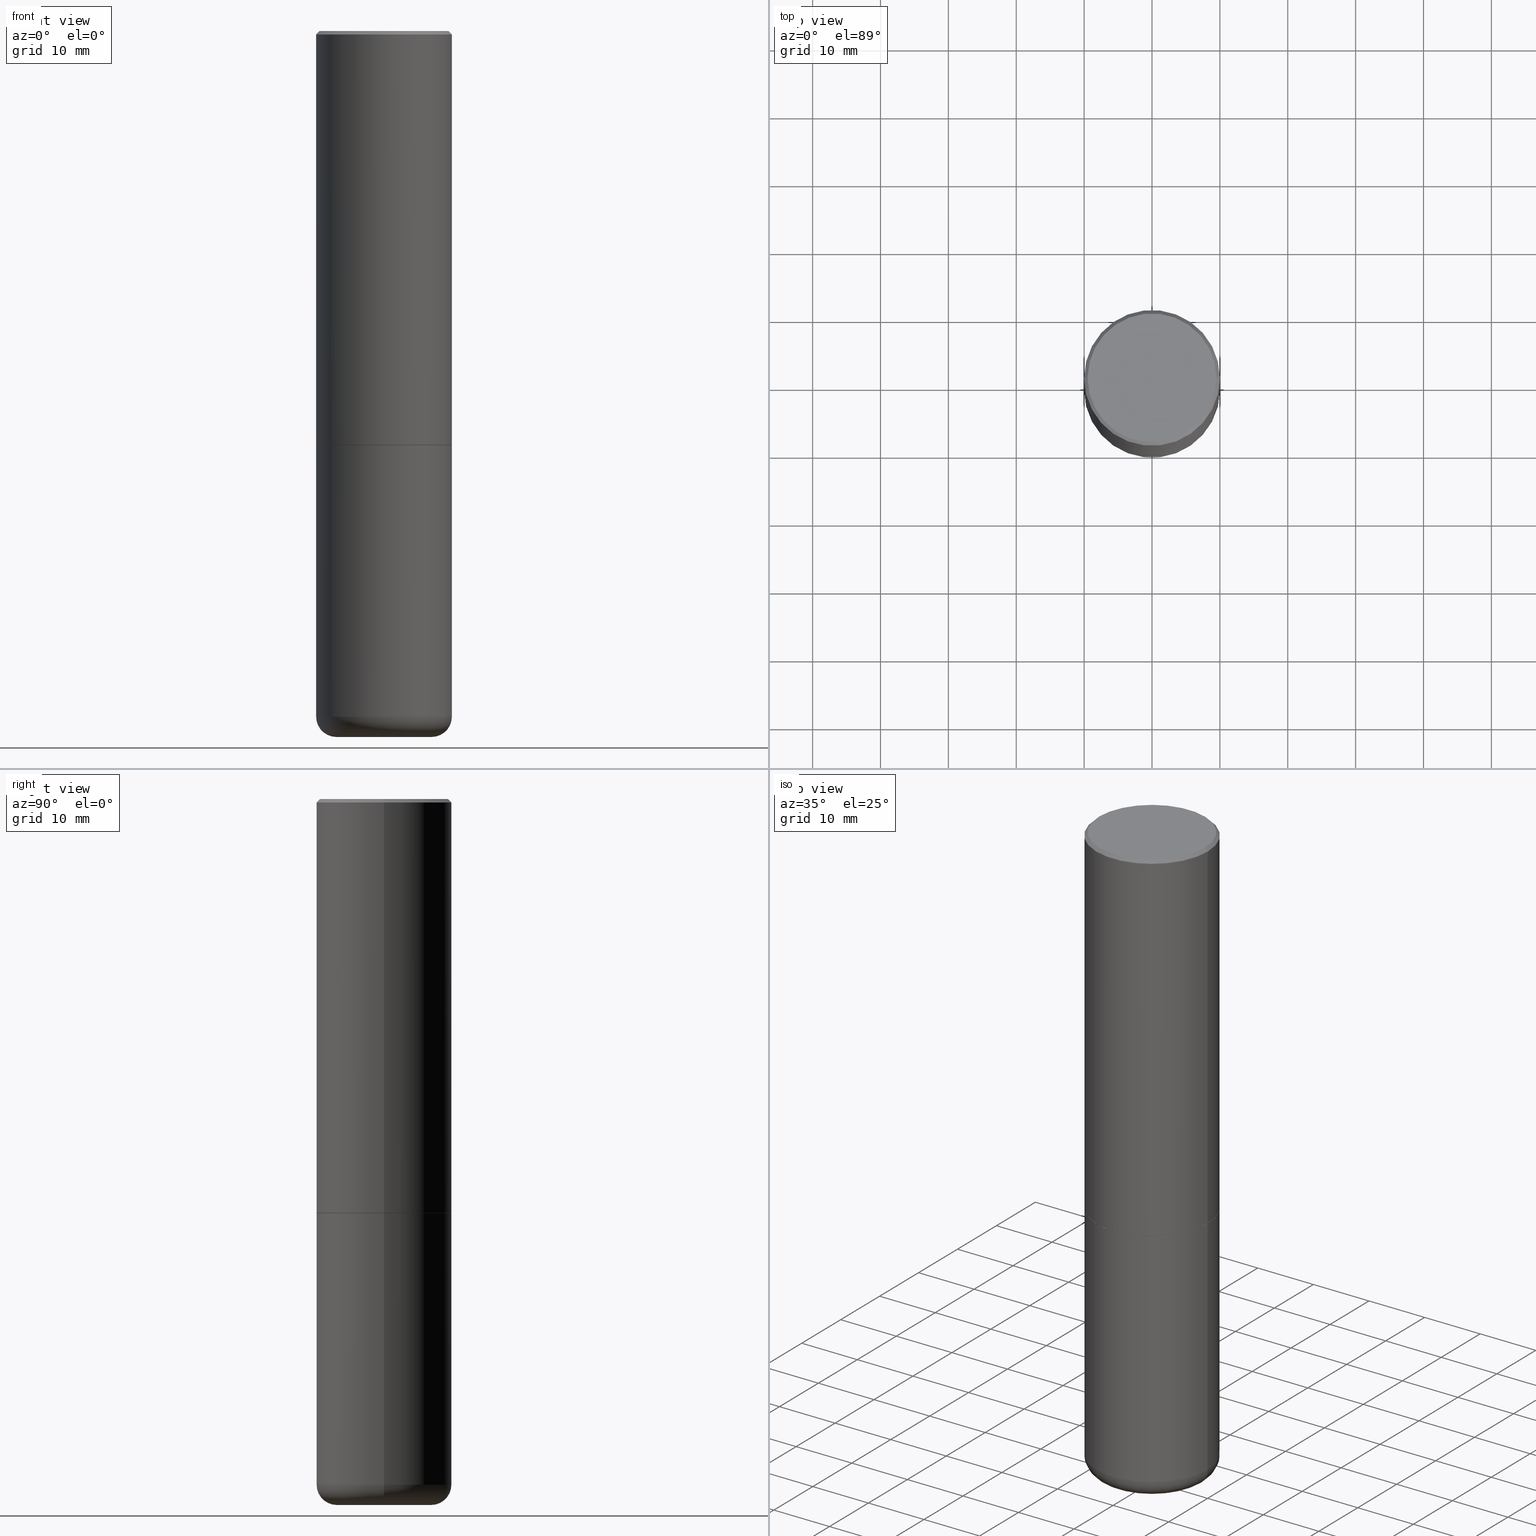
[diagram: canonical four-view strip — front | top / right | iso, engineering-drawing reading convention]
A machine part, canonical four-view strip (front | top / right | iso — engineering-drawing reading convention). The complete STEP part file that produces these views, byte-faithful:
ISO-10303-21;
HEADER;
FILE_DESCRIPTION (( 'STEP AP203' ),
    '1' );
FILE_NAME ('48046.STEP',
    '2024-03-06T19:48:46',
    ( '' ),
    ( '' ),
    'SwSTEP 2.0',
    'SolidWorks 2023',
    '' );
FILE_SCHEMA (( 'CONFIG_CONTROL_DESIGN' ));
ENDSEC;

DATA;
#1 = DIRECTION ( 'NONE',  ( 1.000000000000000000, -6.982962677686268288E-15, 4.883557194083112901E-29 ) ) ;
#2 = ADVANCED_FACE ( 'NONE', ( #343 ), #416, .T. ) ;
#3 = DIRECTION ( 'NONE',  ( 1.000000000000000000, -6.982962677686265922E-15, 4.876176775795935793E-29 ) ) ;
#4 = AXIS2_PLACEMENT_3D ( 'NONE', #300, #49, #373 ) ;
#5 = DATE_AND_TIME ( #67, #56 ) ;
#6 = VECTOR ( 'NONE', #406, 39.37007874015748143 ) ;
#7 = EDGE_CURVE ( 'NONE', #64, #188, #109, .T. ) ;
#8 = DIRECTION ( 'NONE',  ( 2.438088387897960049E-29, -3.491481338843145188E-15, -1.000000000000000000 ) ) ;
#9 = ORIENTED_EDGE ( 'NONE', *, *, #159, .F. ) ;
#10 = DIRECTION ( 'NONE',  ( 1.000000000000000000, -6.982962677686265922E-15, 0.000000000000000000 ) ) ;
#11 = PRODUCT_DEFINITION ( 'UNKNOWN', '', #321, #33 ) ;
#12 = AXIS2_PLACEMENT_3D ( 'NONE', #171, #8, #137 ) ;
#13 = CARTESIAN_POINT ( 'NONE',  ( -0.3937000000000000499, 2.679362779428219918E-15, -0.02000000000000008715 ) ) ;
#14 = ADVANCED_FACE ( 'NONE', ( #362 ), #35, .T. ) ;
#15 = ADVANCED_BREP_SHAPE_REPRESENTATION ( '48046', ( #172, #183, #322 ), #118 ) ;
#16 = FACE_OUTER_BOUND ( 'NONE', #194, .T. ) ;
#17 = PLANE ( 'NONE',  #289 ) ;
#18 = CARTESIAN_POINT ( 'NONE',  ( 5.873037884934224349E-29, -8.385141583365698841E-15, -2.401600000000000179 ) ) ;
#19 = LENGTH_MEASURE_WITH_UNIT ( LENGTH_MEASURE( 0.02539999999999999897 ), #383 );
#20 = DIRECTION ( 'NONE',  ( 1.000000000000000000, -6.982962677686267499E-15, 0.000000000000000000 ) ) ;
#21 = ORIENTED_EDGE ( 'NONE', *, *, #296, .F. ) ;
#22 = DIRECTION ( 'NONE',  ( 1.000000000000000000, -6.982962677686265922E-15, 0.000000000000000000 ) ) ;
#23 = EDGE_CURVE ( 'NONE', #192, #380, #417, .T. ) ;
#24 = EDGE_LOOP ( 'NONE', ( #402, #286, #411, #353 ) ) ;
#25 = AXIS2_PLACEMENT_3D ( 'NONE', #125, #410, #20 ) ;
#26 = PERSON_AND_ORGANIZATION ( #27, #141 ) ;
#27 = PERSON ( 'UNSPECIFIED', 'UNSPECIFIED', 'UNSPECIFIED', ('UNSPECIFIED'), ('UNSPECIFIED'), ('UNSPECIFIED') ) ;
#28 = ORIENTED_EDGE ( 'NONE', *, *, #130, .T. ) ;
#29 = ORIENTED_EDGE ( 'NONE', *, *, #131, .F. ) ;
#30 = APPROVAL_ROLE ( '' ) ;
#31 = ORIENTED_EDGE ( 'NONE', *, *, #191, .T. ) ;
#32 = AXIS2_PLACEMENT_3D ( 'NONE', #227, #63, #198 ) ;
#33 = DESIGN_CONTEXT ( 'detailed design', #278, 'design' ) ;
#34 = DIRECTION ( 'NONE',  ( 1.000000000000000000, -6.982962677686266711E-15, 4.876176775795935793E-29 ) ) ;
#35 = CYLINDRICAL_SURFACE ( 'NONE', #32, 0.3937000000000000499 ) ;
#36 = EDGE_CURVE ( 'NONE', #274, #77, #256, .T. ) ;
#37 = CC_DESIGN_SECURITY_CLASSIFICATION ( #140, ( #321 ) ) ;
#38 = DIRECTION ( 'NONE',  ( -2.445468806185136597E-29, 3.491481338843145583E-15, 1.000000000000000000 ) ) ;
#39 = CARTESIAN_POINT ( 'NONE',  ( 9.724162160914577144E-29, -1.388352639577588421E-14, -3.976400000000000379 ) ) ;
#40 = DIRECTION ( 'NONE',  ( -2.445468806185136597E-29, 3.491481338843145583E-15, 1.000000000000000000 ) ) ;
#41 = AXIS2_PLACEMENT_3D ( 'NONE', #356, #261, #34 ) ;
#42 = CONICAL_SURFACE ( 'NONE', #269, 0.3937000000000000499, 0.7853981633974461696 ) ;
#43 = CARTESIAN_POINT ( 'NONE',  ( -0.3736999999999997546, 2.644447966039789058E-15, 2.646477743862071275E-16 ) ) ;
#44 = CARTESIAN_POINT ( 'NONE',  ( -0.2756000000000000116, -1.192527061602104919E-14, -3.976400000000000379 ) ) ;
#45 = ADVANCED_FACE ( 'NONE', ( #208 ), #206, .T. ) ;
#46 = APPROVAL ( #320, 'UNSPECIFIED' ) ;
#47 = ORIENTED_EDGE ( 'NONE', *, *, #107, .T. ) ;
#48 = DIRECTION ( 'NONE',  ( 1.000000000000000000, -6.982962677686265133E-15, 0.000000000000000000 ) ) ;
#49 = DIRECTION ( 'NONE',  ( -2.445468806185136597E-29, 3.491481338843145583E-15, 1.000000000000000000 ) ) ;
#50 = AXIS2_PLACEMENT_3D ( 'NONE', #388, #38, #297 ) ;
#51 = ORIENTED_EDGE ( 'NONE', *, *, #262, .T. ) ;
#52 = CARTESIAN_POINT ( 'NONE',  ( -0.3937000000000000499, 2.679362779428219918E-15, -0.02000000000000008715 ) ) ;
#53 = EDGE_LOOP ( 'NONE', ( #31, #218 ) ) ;
#54 = DIRECTION ( 'NONE',  ( -1.000000000000000000, 6.982962677686265922E-15, 0.000000000000000000 ) ) ;
#55 = ORIENTED_EDGE ( 'NONE', *, *, #302, .F. ) ;
#56 = LOCAL_TIME ( 14, 48, 46.00000000000000000, #232 ) ;
#57 = ORIENTED_EDGE ( 'NONE', *, *, #132, .T. ) ;
#58 = DIRECTION ( 'NONE',  ( 2.445468806185136597E-29, -3.491481338843145583E-15, -1.000000000000000000 ) ) ;
#59 = ORIENTED_EDGE ( 'NONE', *, *, #302, .T. ) ;
#60 = CARTESIAN_POINT ( 'NONE',  ( -0.3937000000000000499, -8.336927238883277526E-15, -2.401600000000000179 ) ) ;
#61 = VECTOR ( 'NONE', #239, 39.37007874015748143 ) ;
#62 = LOCAL_TIME ( 14, 48, 46.00000000000000000, #325 ) ;
#63 = DIRECTION ( 'NONE',  ( -2.445468806185136597E-29, 3.491481338843145583E-15, 1.000000000000000000 ) ) ;
#64 = VERTEX_POINT ( 'NONE', #292 ) ;
#65 = APPROVAL_DATE_TIME ( #265, #358 ) ;
#66 = CARTESIAN_POINT ( 'NONE',  ( 1.001297202692504102E-28, -1.429587034189325834E-14, -4.094500000000000028 ) ) ;
#67 = CALENDAR_DATE ( 2024, 6, 3 ) ;
#68 = DIRECTION ( 'NONE',  ( -2.445468806185136877E-29, 3.491481338843145188E-15, 1.000000000000000000 ) ) ;
#69 = PERSON_AND_ORGANIZATION ( #27, #141 ) ;
#70 = CARTESIAN_POINT ( 'NONE',  ( 0.3937000000000000499, -1.113433398957078206E-14, -2.401600000000000179 ) ) ;
#71 = DIRECTION ( 'NONE',  ( 1.000000000000000000, -6.982962677686268288E-15, 0.000000000000000000 ) ) ;
#72 = DIRECTION ( 'NONE',  ( -2.438088387897960049E-29, 3.491481338843145188E-15, 1.000000000000000000 ) ) ;
#73 = AXIS2_PLACEMENT_3D ( 'NONE', #219, #354, #309 ) ;
#74 = CARTESIAN_POINT ( 'NONE',  ( 5.873037884934225470E-29, -8.385141583365698841E-15, -2.401600000000000623 ) ) ;
#75 = CARTESIAN_POINT ( 'NONE',  ( 5.873037884934225470E-29, -8.385141583365700419E-15, -2.401600000000000623 ) ) ;
#76 = EDGE_CURVE ( 'NONE', #222, #152, #268, .T. ) ;
#77 = VERTEX_POINT ( 'NONE', #60 ) ;
#78 = FACE_OUTER_BOUND ( 'NONE', #345, .T. ) ;
#79 = AXIS2_PLACEMENT_3D ( 'NONE', #39, #203, #1 ) ;
#80 = AXIS2_PLACEMENT_3D ( 'NONE', #295, #364, #10 ) ;
#81 = CIRCLE ( 'NONE', #199, 0.3937000000000000499 ) ;
#82 = VERTEX_POINT ( 'NONE', #390 ) ;
#83 = CARTESIAN_POINT ( 'NONE',  ( 4.890937612370294178E-31, -6.982962677686321191E-17, -0.02000000000000008715 ) ) ;
#84 = ORIENTED_EDGE ( 'NONE', *, *, #296, .T. ) ;
#85 = APPLICATION_PROTOCOL_DEFINITION ( 'international standard', 'config_control_design', 1994, #278 ) ;
#86 = EDGE_LOOP ( 'NONE', ( #282, #317, #116, #255 ) ) ;
#87 = MECHANICAL_CONTEXT ( 'NONE', #112, 'mechanical' ) ;
#88 = ORIENTED_EDGE ( 'NONE', *, *, #130, .F. ) ;
#89 = LOCAL_TIME ( 14, 48, 46.00000000000000000, #231 ) ;
#90 = ORIENTED_EDGE ( 'NONE', *, *, #119, .F. ) ;
#91 = PERSON_AND_ORGANIZATION ( #27, #141 ) ;
#92 = DIRECTION ( 'NONE',  ( -2.445468806185136597E-29, 3.491481338843145583E-15, 1.000000000000000000 ) ) ;
#93 = CALENDAR_DATE ( 2024, 6, 3 ) ;
#94 = DIRECTION ( 'NONE',  ( -2.445468806185136597E-29, 3.491481338843145583E-15, 1.000000000000000000 ) ) ;
#95 = AXIS2_PLACEMENT_3D ( 'NONE', #298, #179, #370 ) ;
#96 = EDGE_CURVE ( 'NONE', #188, #64, #253, .T. ) ;
#97 = EDGE_CURVE ( 'NONE', #315, #127, #386, .T. ) ;
#98 = DATE_TIME_ROLE ( 'creation_date' ) ;
#99 = DIRECTION ( 'NONE',  ( -2.445468806185136597E-29, 3.491481338843145583E-15, 1.000000000000000000 ) ) ;
#100 = APPROVAL_DATE_TIME ( #263, #46 ) ;
#101 = FACE_OUTER_BOUND ( 'NONE', #196, .T. ) ;
#102 = ADVANCED_FACE ( 'NONE', ( #205 ), #174, .T. ) ;
#103 = DIRECTION ( 'NONE',  ( 1.000000000000000000, -6.982962677686266711E-15, 4.877734241229879050E-29 ) ) ;
#104 = LINE ( 'NONE', #13, #155 ) ;
#105 = CARTESIAN_POINT ( 'NONE',  ( 5.870592416128038746E-29, -8.381650102026855834E-15, -2.400600000000000289 ) ) ;
#106 = FACE_OUTER_BOUND ( 'NONE', #290, .T. ) ;
#107 = EDGE_CURVE ( 'NONE', #120, #82, #332, .T. ) ;
#108 = EDGE_CURVE ( 'NONE', #415, #384, #236, .T. ) ;
#109 = CIRCLE ( 'NONE', #360, 0.3926999999999999935 ) ;
#110 = LOCAL_TIME ( 14, 48, 46.00000000000000000, #201 ) ;
#111 = CARTESIAN_POINT ( 'NONE',  ( 5.873037884934224349E-29, -8.385141583365698841E-15, -2.401600000000000179 ) ) ;
#112 = APPLICATION_CONTEXT ( 'configuration controlled 3d designs of mechanical parts and assemblies' ) ;
#113 = DIRECTION ( 'NONE',  ( 0.7071067811864267805, -2.468850131080992517E-15, 0.7071067811866682540 ) ) ;
#114 = CARTESIAN_POINT ( 'NONE',  ( -0.3937000000000003830, -1.428333113714341032E-15, -2.400600000000000289 ) ) ;
#115 = ADVANCED_FACE ( 'NONE', ( #101 ), #202, .T. ) ;
#116 = ORIENTED_EDGE ( 'NONE', *, *, #335, .T. ) ;
#117 = AXIS2_PLACEMENT_3D ( 'NONE', #330, #267, #143 ) ;
#118 =( GEOMETRIC_REPRESENTATION_CONTEXT ( 3 ) GLOBAL_UNCERTAINTY_ASSIGNED_CONTEXT ( ( #369 ) ) GLOBAL_UNIT_ASSIGNED_CONTEXT ( ( #123, #375, #344 ) ) REPRESENTATION_CONTEXT ( 'NONE', 'WORKASPACE' ) );
#119 = EDGE_CURVE ( 'NONE', #315, #274, #176, .T. ) ;
#120 = VERTEX_POINT ( 'NONE', #133 ) ;
#121 = DIRECTION ( 'NONE',  ( -2.445468806185136597E-29, 3.491481338843145583E-15, 1.000000000000000000 ) ) ;
#122 = ORIENTED_EDGE ( 'NONE', *, *, #96, .F. ) ;
#123 =( CONVERSION_BASED_UNIT ( 'INCH', #19 ) LENGTH_UNIT ( ) NAMED_UNIT ( #149 ) );
#124 = ORIENTED_EDGE ( 'NONE', *, *, #266, .F. ) ;
#125 = CARTESIAN_POINT ( 'NONE',  ( 9.724162160914577144E-29, -1.388352639577588421E-14, -3.976400000000000379 ) ) ;
#126 = CIRCLE ( 'NONE', #4, 0.3937000000000000499 ) ;
#127 = VERTEX_POINT ( 'NONE', #70 ) ;
#128 = PERSON_AND_ORGANIZATION ( #27, #141 ) ;
#129 = DIRECTION ( 'NONE',  ( -2.445468806185136597E-29, 3.491481338843145583E-15, 1.000000000000000000 ) ) ;
#130 = EDGE_CURVE ( 'NONE', #82, #120, #350, .T. ) ;
#131 = EDGE_CURVE ( 'NONE', #77, #127, #126, .T. ) ;
#132 = EDGE_CURVE ( 'NONE', #64, #380, #398, .T. ) ;
#133 = CARTESIAN_POINT ( 'NONE',  ( -0.2756000000000000116, -1.171186710361339913E-14, -4.094500000000000028 ) ) ;
#134 = CIRCLE ( 'NONE', #207, 0.3937000000000000499 ) ;
#135 = PERSON_AND_ORGANIZATION_ROLE ( 'creator' ) ;
#136 = APPROVAL_DATE_TIME ( #5, #237 ) ;
#137 = DIRECTION ( 'NONE',  ( -1.000000000000000000, 6.982962677686265922E-15, -4.876176775795935793E-29 ) ) ;
#138 = DIRECTION ( 'NONE',  ( -2.445468806185136597E-29, 3.491481338843145583E-15, 1.000000000000000000 ) ) ;
#139 = CLOSED_SHELL ( 'NONE', ( #14, #178, #182, #102, #45, #115 ) ) ;
#140 = SECURITY_CLASSIFICATION ( '', '', #259 ) ;
#141 = ORGANIZATION ( 'UNSPECIFIED', 'UNSPECIFIED', '' ) ;
#142 = DIRECTION ( 'NONE',  ( -0.7071067811865460184, 2.468850131082241283E-15, -0.7071067811865490160 ) ) ;
#143 = DIRECTION ( 'NONE',  ( 1.000000000000000000, -6.982962677686273021E-15, 0.000000000000000000 ) ) ;
#144 = DIRECTION ( 'NONE',  ( -1.000000000000000000, 6.982962677686265922E-15, -4.876176775795935793E-29 ) ) ;
#145 = ORIENTED_EDGE ( 'NONE', *, *, #191, .F. ) ;
#146 = ADVANCED_FACE ( 'NONE', ( #209 ), #331, .F. ) ;
#147 = CIRCLE ( 'NONE', #25, 0.3937000000000000499 ) ;
#148 = CARTESIAN_POINT ( 'NONE',  ( 2.609533152651355831E-15, 0.3736999999999997546, -1.172442689132570013E-15 ) ) ;
#149 = DIMENSIONAL_EXPONENTS ( 1.000000000000000000, 0.000000000000000000, 0.000000000000000000, 0.000000000000000000, 0.000000000000000000, 0.000000000000000000, 0.000000000000000000 ) ;
#150 = FACE_OUTER_BOUND ( 'NONE', #339, .T. ) ;
#151 = APPLICATION_PROTOCOL_DEFINITION ( 'international standard', 'config_control_design', 1994, #112 ) ;
#152 = VERTEX_POINT ( 'NONE', #43 ) ;
#153 = CARTESIAN_POINT ( 'NONE',  ( -0.3937000000000001609, 2.797406750687515575E-15, -1.936584745033357296E-29 ) ) ;
#154 = CC_DESIGN_PERSON_AND_ORGANIZATION_ASSIGNMENT ( #164, #257, ( #140 ) ) ;
#155 = VECTOR ( 'NONE', #142, 39.37007874015748143 ) ;
#156 = CC_DESIGN_DATE_AND_TIME_ASSIGNMENT ( #361, #234, ( #140 ) ) ;
#157 = ORIENTED_EDGE ( 'NONE', *, *, #23, .F. ) ;
#158 = CYLINDRICAL_SURFACE ( 'NONE', #328, 0.3937000000000001609 ) ;
#159 = EDGE_CURVE ( 'NONE', #82, #315, #184, .T. ) ;
#160 = ORIENTED_EDGE ( 'NONE', *, *, #352, .T. ) ;
#161 = ORIENTED_EDGE ( 'NONE', *, *, #107, .F. ) ;
#162 = TOROIDAL_SURFACE ( 'NONE', #212, 0.2756000000000000116, 0.1180999999999997468 ) ;
#163 = ORIENTED_EDGE ( 'NONE', *, *, #335, .F. ) ;
#164 = PERSON_AND_ORGANIZATION ( #27, #141 ) ;
#165 = DIRECTION ( 'NONE',  ( -2.445468806185136877E-29, 3.491481338843145188E-15, 1.000000000000000000 ) ) ;
#166 = DIRECTION ( 'NONE',  ( 1.000000000000000000, -6.982962677686268288E-15, 0.000000000000000000 ) ) ;
#167 = PERSON_AND_ORGANIZATION ( #27, #141 ) ;
#168 = CARTESIAN_POINT ( 'NONE',  ( -0.3937000000000000499, 2.797406750687514786E-15, -1.936584745033356735E-29 ) ) ;
#169 = ORIENTED_EDGE ( 'NONE', *, *, #76, .F. ) ;
#170 = AXIS2_PLACEMENT_3D ( 'NONE', #357, #99, #103 ) ;
#171 = CARTESIAN_POINT ( 'NONE',  ( 1.568120783406370671E-28, -6.178634050123789669E-15, -4.094500000000000028 ) ) ;
#172 = MANIFOLD_SOLID_BREP ( 'Body-Move/Copy2[1]', #139 ) ;
#173 = ADVANCED_FACE ( 'NONE', ( #238 ), #288, .T. ) ;
#174 = CYLINDRICAL_SURFACE ( 'NONE', #197, 0.3937000000000000499 ) ;
#175 = DIRECTION ( 'NONE',  ( 2.438088387897960049E-29, -3.491481338843145188E-15, -1.000000000000000000 ) ) ;
#176 = CIRCLE ( 'NONE', #245, 0.3937000000000000499 ) ;
#177 = APPROVAL_PERSON_ORGANIZATION ( #26, #358, #252 ) ;
#178 = ADVANCED_FACE ( 'NONE', ( #78 ), #162, .T. ) ;
#179 = DIRECTION ( 'NONE',  ( -2.445468806185136597E-29, 3.491481338843145583E-15, 1.000000000000000000 ) ) ;
#180 = DIRECTION ( 'NONE',  ( 7.105427357601001859E-15, 1.000000000000000000, -3.491481338843145583E-15 ) ) ;
#181 = LINE ( 'NONE', #403, #213 ) ;
#182 = ADVANCED_FACE ( 'NONE', ( #16 ), #395, .F. ) ;
#183 = MANIFOLD_SOLID_BREP ( 'Body-Move/Copy2[2]', #394 ) ;
#184 = CIRCLE ( 'NONE', #117, 0.1180999999999997191 ) ;
#185 = CARTESIAN_POINT ( 'NONE',  ( -0.3926999999999999935, -5.594840260035786640E-15, -2.401600000000000623 ) ) ;
#186 = DIRECTION ( 'NONE',  ( -2.445468806185136597E-29, 3.491481338843145583E-15, 1.000000000000000000 ) ) ;
#187 = ORIENTED_EDGE ( 'NONE', *, *, #7, .T. ) ;
#188 = VERTEX_POINT ( 'NONE', #216 ) ;
#189 = DIRECTION ( 'NONE',  ( 1.000000000000000000, 0.000000000000000000, 0.000000000000000000 ) ) ;
#190 = AXIS2_PLACEMENT_3D ( 'NONE', #243, #240, #270 ) ;
#191 = EDGE_CURVE ( 'NONE', #152, #222, #229, .T. ) ;
#192 = VERTEX_POINT ( 'NONE', #368 ) ;
#193 = APPROVAL_STATUS ( 'not_yet_approved' ) ;
#194 = EDGE_LOOP ( 'NONE', ( #337, #336 ) ) ;
#195 = LINE ( 'NONE', #153, #6 ) ;
#196 = EDGE_LOOP ( 'NONE', ( #88, #161 ) ) ;
#197 = AXIS2_PLACEMENT_3D ( 'NONE', #363, #233, #3 ) ;
#198 = DIRECTION ( 'NONE',  ( 1.000000000000000000, -6.982962677686265922E-15, 4.876176775795935793E-29 ) ) ;
#199 = AXIS2_PLACEMENT_3D ( 'NONE', #83, #121, #22 ) ;
#200 = EDGE_CURVE ( 'NONE', #152, #415, #104, .T. ) ;
#201 = COORDINATED_UNIVERSAL_TIME_OFFSET ( 5, 0, .BEHIND. ) ;
#202 = PLANE ( 'NONE',  #12 ) ;
#203 = DIRECTION ( 'NONE',  ( -2.445468806185136597E-29, 3.491481338843145583E-15, 1.000000000000000000 ) ) ;
#204 = CC_DESIGN_PERSON_AND_ORGANIZATION_ASSIGNMENT ( #91, #135, ( #321 ) ) ;
#205 = FACE_OUTER_BOUND ( 'NONE', #279, .T. ) ;
#206 = TOROIDAL_SURFACE ( 'NONE', #79, 0.2756000000000000116, 0.1180999999999997468 ) ;
#207 = AXIS2_PLACEMENT_3D ( 'NONE', #111, #241, #48 ) ;
#208 = FACE_OUTER_BOUND ( 'NONE', #347, .T. ) ;
#209 = FACE_OUTER_BOUND ( 'NONE', #244, .T. ) ;
#210 = ADVANCED_FACE ( 'NONE', ( #106 ), #312, .T. ) ;
#211 = CARTESIAN_POINT ( 'NONE',  ( 0.3937000000000000499, -2.770807688499515734E-15, -0.02000000000000008715 ) ) ;
#212 = AXIS2_PLACEMENT_3D ( 'NONE', #214, #40, #334 ) ;
#213 = VECTOR ( 'NONE', #113, 39.37007874015748143 ) ;
#214 = CARTESIAN_POINT ( 'NONE',  ( 9.724162160914577144E-29, -1.388352639577588421E-14, -3.976400000000000379 ) ) ;
#215 = CARTESIAN_POINT ( 'NONE',  ( 0.3736999999999997546, -2.667287895133366781E-15, 2.646477743862439574E-16 ) ) ;
#216 = CARTESIAN_POINT ( 'NONE',  ( 0.3926999999999999935, -1.112735102689309762E-14, -2.401600000000000623 ) ) ;
#217 = APPROVAL_PERSON_ORGANIZATION ( #324, #237, #365 ) ;
#218 = ORIENTED_EDGE ( 'NONE', *, *, #76, .T. ) ;
#219 = CARTESIAN_POINT ( 'NONE',  ( 5.873037884934225470E-29, -8.385141583365700419E-15, -2.401600000000000623 ) ) ;
#220 = ORIENTED_EDGE ( 'NONE', *, *, #251, .F. ) ;
#221 = CARTESIAN_POINT ( 'NONE',  ( 0.000000000000000000, 0.000000000000000000, 0.000000000000000000 ) ) ;
#222 = VERTEX_POINT ( 'NONE', #215 ) ;
#223 = AXIS2_PLACEMENT_3D ( 'NONE', #329, #92, #374 ) ;
#224 = CC_DESIGN_APPROVAL ( #358, ( #11 ) ) ;
#225 = EDGE_LOOP ( 'NONE', ( #378, #57, #157, #21 ) ) ;
#226 = ORIENTED_EDGE ( 'NONE', *, *, #23, .T. ) ;
#227 = CARTESIAN_POINT ( 'NONE',  ( 0.000000000000000000, 0.000000000000000000, 0.000000000000000000 ) ) ;
#228 = PERSON_AND_ORGANIZATION_ROLE ( 'creator' ) ;
#229 = CIRCLE ( 'NONE', #95, 0.3736999999999997546 ) ;
#230 = VECTOR ( 'NONE', #371, 39.37007874015748143 ) ;
#231 = COORDINATED_UNIVERSAL_TIME_OFFSET ( 5, 0, .BEHIND. ) ;
#232 = COORDINATED_UNIVERSAL_TIME_OFFSET ( 5, 0, .BEHIND. ) ;
#233 = DIRECTION ( 'NONE',  ( -2.445468806185136597E-29, 3.491481338843145583E-15, 1.000000000000000000 ) ) ;
#234 = DATE_TIME_ROLE ( 'classification_date' ) ;
#235 = CARTESIAN_POINT ( 'NONE',  ( 9.724162160914577144E-29, -1.388352639577588421E-14, -3.976400000000000379 ) ) ;
#236 = CIRCLE ( 'NONE', #50, 0.3937000000000000499 ) ;
#237 = APPROVAL ( #418, 'UNSPECIFIED' ) ;
#238 = FACE_OUTER_BOUND ( 'NONE', #381, .T. ) ;
#239 = DIRECTION ( 'NONE',  ( -0.7071067811864267805, 7.493145998869918709E-15, 0.7071067811866682540 ) ) ;
#240 = DIRECTION ( 'NONE',  ( 2.445468806185136597E-29, -3.491481338843145583E-15, -1.000000000000000000 ) ) ;
#241 = DIRECTION ( 'NONE',  ( -2.445468806185136597E-29, 3.491481338843145583E-15, 1.000000000000000000 ) ) ;
#242 = ORIENTED_EDGE ( 'NONE', *, *, #132, .F. ) ;
#243 = CARTESIAN_POINT ( 'NONE',  ( 4.890937612370294178E-31, -6.982962677686321191E-17, -0.02000000000000008715 ) ) ;
#244 = EDGE_LOOP ( 'NONE', ( #122, #284 ) ) ;
#245 = AXIS2_PLACEMENT_3D ( 'NONE', #235, #393, #366 ) ;
#246 = CARTESIAN_POINT ( 'NONE',  ( 0.000000000000000000, 0.000000000000000000, 0.000000000000000000 ) ) ;
#247 = EDGE_LOOP ( 'NONE', ( #408, #145, #413, #310 ) ) ;
#248 = ORIENTED_EDGE ( 'NONE', *, *, #399, .T. ) ;
#249 = DIRECTION ( 'NONE',  ( 1.000000000000000000, -6.982962677686266711E-15, 4.876176775795935793E-29 ) ) ;
#250 = ORIENTED_EDGE ( 'NONE', *, *, #200, .F. ) ;
#251 = EDGE_CURVE ( 'NONE', #380, #192, #260, .T. ) ;
#252 = APPROVAL_ROLE ( '' ) ;
#253 = CIRCLE ( 'NONE', #304, 0.3926999999999999935 ) ;
#254 = VECTOR ( 'NONE', #276, 39.37007874015748143 ) ;
#255 = ORIENTED_EDGE ( 'NONE', *, *, #108, .F. ) ;
#256 = LINE ( 'NONE', #168, #382 ) ;
#257 = PERSON_AND_ORGANIZATION_ROLE ( 'classification_officer' ) ;
#258 = DIRECTION ( 'NONE',  ( 1.000000000000000000, -6.982962677686265922E-15, 0.000000000000000000 ) ) ;
#259 = SECURITY_CLASSIFICATION_LEVEL ( 'unclassified' ) ;
#260 = CIRCLE ( 'NONE', #397, 0.3937000000000002720 ) ;
#261 = DIRECTION ( 'NONE',  ( -2.445468806185136597E-29, 3.491481338843145583E-15, 1.000000000000000000 ) ) ;
#262 = EDGE_CURVE ( 'NONE', #222, #384, #400, .T. ) ;
#263 = DATE_AND_TIME ( #391, #110 ) ;
#264 = DIRECTION ( 'NONE',  ( 1.000000000000000000, -6.982962677686268288E-15, 0.000000000000000000 ) ) ;
#265 = DATE_AND_TIME ( #414, #372 ) ;
#266 = EDGE_CURVE ( 'NONE', #120, #274, #409, .T. ) ;
#267 = DIRECTION ( 'NONE',  ( -6.982962677686266711E-15, -1.000000000000000000, 3.491481338843145583E-15 ) ) ;
#268 = CIRCLE ( 'NONE', #170, 0.3736999999999997546 ) ;
#269 = AXIS2_PLACEMENT_3D ( 'NONE', #348, #58, #54 ) ;
#270 = DIRECTION ( 'NONE',  ( -1.000000000000000000, 6.982962677686265922E-15, 0.000000000000000000 ) ) ;
#271 = DIRECTION ( 'NONE',  ( -2.445468806185136597E-29, 3.491481338843145583E-15, 1.000000000000000000 ) ) ;
#272 = ADVANCED_FACE ( 'NONE', ( #303 ), #17, .F. ) ;
#273 = DIRECTION ( 'NONE',  ( -1.000000000000000000, 6.982962677686265922E-15, -4.876176775795935793E-29 ) ) ;
#274 = VERTEX_POINT ( 'NONE', #401 ) ;
#275 = PRODUCT_DEFINITION_SHAPE ( 'NONE', 'NONE',  #11 ) ;
#276 = DIRECTION ( 'NONE',  ( -2.445468806185136877E-29, 3.491481338843145188E-15, 1.000000000000000000 ) ) ;
#277 = FACE_OUTER_BOUND ( 'NONE', #225, .T. ) ;
#278 = APPLICATION_CONTEXT ( 'configuration controlled 3d designs of mechanical parts and assemblies' ) ;
#279 = EDGE_LOOP ( 'NONE', ( #355, #59, #319, #29 ) ) ;
#280 = AXIS2_PLACEMENT_3D ( 'NONE', #66, #326, #258 ) ;
#281 = EDGE_CURVE ( 'NONE', #127, #77, #134, .T. ) ;
#282 = ORIENTED_EDGE ( 'NONE', *, *, #399, .F. ) ;
#283 = CARTESIAN_POINT ( 'NONE',  ( 0.3937000000000000499, -2.770807688499515734E-15, -0.02000000000000008715 ) ) ;
#284 = ORIENTED_EDGE ( 'NONE', *, *, #7, .F. ) ;
#285 = DIRECTION ( 'NONE',  ( 0.000000000000000000, 0.000000000000000000, 1.000000000000000000 ) ) ;
#286 = ORIENTED_EDGE ( 'NONE', *, *, #36, .T. ) ;
#287 = SHAPE_DEFINITION_REPRESENTATION ( #275, #15 ) ;
#288 = CONICAL_SURFACE ( 'NONE', #341, 0.3926999999999999935, 0.7853981633972775267 ) ;
#289 = AXIS2_PLACEMENT_3D ( 'NONE', #148, #338, #144 ) ;
#290 = EDGE_LOOP ( 'NONE', ( #169, #51, #160, #250 ) ) ;
#291 = CC_DESIGN_DATE_AND_TIME_ASSIGNMENT ( #385, #98, ( #11 ) ) ;
#292 = CARTESIAN_POINT ( 'NONE',  ( -0.3926999999999999935, -5.589541805687562660E-15, -2.401600000000000623 ) ) ;
#293 = CALENDAR_DATE ( 2024, 6, 3 ) ;
#294 = CC_DESIGN_APPROVAL ( #237, ( #321 ) ) ;
#295 = CARTESIAN_POINT ( 'NONE',  ( 5.870592416128038746E-29, -8.381650102026855834E-15, -2.400600000000000289 ) ) ;
#296 = EDGE_CURVE ( 'NONE', #188, #192, #181, .T. ) ;
#297 = DIRECTION ( 'NONE',  ( 1.000000000000000000, -6.982962677686265922E-15, 0.000000000000000000 ) ) ;
#298 = CARTESIAN_POINT ( 'NONE',  ( -6.471878768878362764E-45, 9.240127656358773134E-31, 2.646477743862255178E-16 ) ) ;
#299 = AXIS2_PLACEMENT_3D ( 'NONE', #74, #72, #307 ) ;
#300 = CARTESIAN_POINT ( 'NONE',  ( 5.873037884934224349E-29, -8.385141583365698841E-15, -2.401600000000000179 ) ) ;
#301 = DIRECTION ( 'NONE',  ( -1.000000000000000000, 7.105427357601005014E-15, 0.000000000000000000 ) ) ;
#302 = EDGE_CURVE ( 'NONE', #274, #315, #147, .T. ) ;
#303 = FACE_OUTER_BOUND ( 'NONE', #53, .T. ) ;
#304 = AXIS2_PLACEMENT_3D ( 'NONE', #327, #129, #264 ) ;
#305 = ADVANCED_FACE ( 'NONE', ( #150 ), #158, .T. ) ;
#306 = AXIS2_PLACEMENT_3D ( 'NONE', #44, #180, #301 ) ;
#307 = DIRECTION ( 'NONE',  ( 1.000000000000000000, -6.982962677686265922E-15, 4.876176775795935793E-29 ) ) ;
#308 = CC_DESIGN_PERSON_AND_ORGANIZATION_ASSIGNMENT ( #128, #228, ( #11 ) ) ;
#309 = DIRECTION ( 'NONE',  ( 1.000000000000000000, -6.982962677686268288E-15, 0.000000000000000000 ) ) ;
#310 = ORIENTED_EDGE ( 'NONE', *, *, #108, .T. ) ;
#311 = ORIENTED_EDGE ( 'NONE', *, *, #159, .T. ) ;
#312 = CONICAL_SURFACE ( 'NONE', #190, 0.3937000000000000499, 0.7853981633974461696 ) ;
#313 = PERSON_AND_ORGANIZATION_ROLE ( 'design_owner' ) ;
#314 = PRODUCT_RELATED_PRODUCT_CATEGORY ( 'detail', '', ( #404 ) ) ;
#315 = VERTEX_POINT ( 'NONE', #346 ) ;
#316 = COORDINATED_UNIVERSAL_TIME_OFFSET ( 5, 0, .BEHIND. ) ;
#317 = ORIENTED_EDGE ( 'NONE', *, *, #251, .T. ) ;
#318 = ADVANCED_FACE ( 'NONE', ( #412 ), #42, .T. ) ;
#319 = ORIENTED_EDGE ( 'NONE', *, *, #97, .T. ) ;
#320 = APPROVAL_STATUS ( 'not_yet_approved' ) ;
#321 = PRODUCT_DEFINITION_FORMATION_WITH_SPECIFIED_SOURCE ( 'ANY', '', #404, .NOT_KNOWN. ) ;
#322 = AXIS2_PLACEMENT_3D ( 'NONE', #221, #285, #189 ) ;
#323 = CARTESIAN_POINT ( 'NONE',  ( 5.873037884934225470E-29, -8.385141583365700419E-15, -2.401600000000000623 ) ) ;
#324 = PERSON_AND_ORGANIZATION ( #27, #141 ) ;
#325 = COORDINATED_UNIVERSAL_TIME_OFFSET ( 5, 0, .BEHIND. ) ;
#326 = DIRECTION ( 'NONE',  ( -2.445468806185136597E-29, 3.491481338843145583E-15, 1.000000000000000000 ) ) ;
#327 = CARTESIAN_POINT ( 'NONE',  ( 5.873037884934225470E-29, -8.385141583365700419E-15, -2.401600000000000623 ) ) ;
#328 = AXIS2_PLACEMENT_3D ( 'NONE', #246, #186, #249 ) ;
#329 = CARTESIAN_POINT ( 'NONE',  ( 1.001297202692504102E-28, -1.429587034189325834E-14, -4.094500000000000028 ) ) ;
#330 = CARTESIAN_POINT ( 'NONE',  ( 0.2756000000000000116, -1.580803090974622074E-14, -3.976400000000000379 ) ) ;
#331 = PLANE ( 'NONE',  #299 ) ;
#332 = CIRCLE ( 'NONE', #280, 0.2756000000000000116 ) ;
#333 = CC_DESIGN_PERSON_AND_ORGANIZATION_ASSIGNMENT ( #167, #387, ( #321 ) ) ;
#334 = DIRECTION ( 'NONE',  ( 1.000000000000000000, -6.982962677686268288E-15, 4.883557194083112901E-29 ) ) ;
#335 = EDGE_CURVE ( 'NONE', #192, #384, #377, .T. ) ;
#336 = ORIENTED_EDGE ( 'NONE', *, *, #131, .T. ) ;
#337 = ORIENTED_EDGE ( 'NONE', *, *, #281, .T. ) ;
#338 = DIRECTION ( 'NONE',  ( 2.438088387897960049E-29, -3.491481338843145188E-15, -1.000000000000000000 ) ) ;
#339 = EDGE_LOOP ( 'NONE', ( #226, #248, #376, #163 ) ) ;
#340 = DIRECTION ( 'NONE',  ( 1.000000000000000000, -6.982962677686265922E-15, 0.000000000000000000 ) ) ;
#341 = AXIS2_PLACEMENT_3D ( 'NONE', #75, #138, #71 ) ;
#342 = APPROVAL_PERSON_ORGANIZATION ( #69, #46, #30 ) ;
#343 = FACE_OUTER_BOUND ( 'NONE', #86, .T. ) ;
#344 =( NAMED_UNIT ( * ) SI_UNIT ( $, .STERADIAN. ) SOLID_ANGLE_UNIT ( ) );
#345 = EDGE_LOOP ( 'NONE', ( #28, #349, #90, #9 ) ) ;
#346 = CARTESIAN_POINT ( 'NONE',  ( 0.3936999999999998834, -1.663271880198096585E-14, -3.976400000000000379 ) ) ;
#347 = EDGE_LOOP ( 'NONE', ( #124, #47, #311, #55 ) ) ;
#348 = CARTESIAN_POINT ( 'NONE',  ( 4.890937612370294178E-31, -6.982962677686321191E-17, -0.02000000000000008715 ) ) ;
#349 = ORIENTED_EDGE ( 'NONE', *, *, #266, .T. ) ;
#350 = CIRCLE ( 'NONE', #223, 0.2756000000000000116 ) ;
#351 = CONICAL_SURFACE ( 'NONE', #73, 0.3926999999999999935, 0.7853981633972775267 ) ;
#352 = EDGE_CURVE ( 'NONE', #384, #415, #81, .T. ) ;
#353 = ORIENTED_EDGE ( 'NONE', *, *, #97, .F. ) ;
#354 = DIRECTION ( 'NONE',  ( -2.445468806185136597E-29, 3.491481338843145583E-15, 1.000000000000000000 ) ) ;
#355 = ORIENTED_EDGE ( 'NONE', *, *, #36, .F. ) ;
#356 = CARTESIAN_POINT ( 'NONE',  ( 0.000000000000000000, 0.000000000000000000, 0.000000000000000000 ) ) ;
#357 = CARTESIAN_POINT ( 'NONE',  ( -6.471878768878362764E-45, 9.240127656358773134E-31, 2.646477743862255178E-16 ) ) ;
#358 = APPROVAL ( #193, 'UNSPECIFIED' ) ;
#359 = ADVANCED_FACE ( 'NONE', ( #277 ), #351, .T. ) ;
#360 = AXIS2_PLACEMENT_3D ( 'NONE', #323, #94, #166 ) ;
#361 = DATE_AND_TIME ( #93, #62 ) ;
#362 = FACE_OUTER_BOUND ( 'NONE', #24, .T. ) ;
#363 = CARTESIAN_POINT ( 'NONE',  ( 0.000000000000000000, 0.000000000000000000, 0.000000000000000000 ) ) ;
#364 = DIRECTION ( 'NONE',  ( -2.445468806185136597E-29, 3.491481338843145583E-15, 1.000000000000000000 ) ) ;
#365 = APPROVAL_ROLE ( '' ) ;
#366 = DIRECTION ( 'NONE',  ( 1.000000000000000000, -6.982962677686267499E-15, 0.000000000000000000 ) ) ;
#367 = CC_DESIGN_APPROVAL ( #46, ( #140 ) ) ;
#368 = CARTESIAN_POINT ( 'NONE',  ( 0.3937000000000002720, -1.113084250823194063E-14, -2.400600000000000289 ) ) ;
#369 = UNCERTAINTY_MEASURE_WITH_UNIT (LENGTH_MEASURE( 1.000000000000000082E-05 ), #123, 'distance_accuracy_value', 'NONE');
#370 = DIRECTION ( 'NONE',  ( 1.000000000000000000, -6.982962677686266711E-15, 4.877734241229879050E-29 ) ) ;
#371 = DIRECTION ( 'NONE',  ( 0.7071067811865460184, -7.319954787623251312E-15, -0.7071067811865490160 ) ) ;
#372 = LOCAL_TIME ( 14, 48, 46.00000000000000000, #316 ) ;
#373 = DIRECTION ( 'NONE',  ( 1.000000000000000000, -6.982962677686265133E-15, 0.000000000000000000 ) ) ;
#374 = DIRECTION ( 'NONE',  ( 1.000000000000000000, -6.982962677686265922E-15, 0.000000000000000000 ) ) ;
#375 =( NAMED_UNIT ( * ) PLANE_ANGLE_UNIT ( ) SI_UNIT ( $, .RADIAN. ) );
#376 = ORIENTED_EDGE ( 'NONE', *, *, #352, .F. ) ;
#377 = LINE ( 'NONE', #405, #254 ) ;
#378 = ORIENTED_EDGE ( 'NONE', *, *, #96, .T. ) ;
#379 = PERSON_AND_ORGANIZATION ( #27, #141 ) ;
#380 = VERTEX_POINT ( 'NONE', #114 ) ;
#381 = EDGE_LOOP ( 'NONE', ( #242, #187, #84, #220 ) ) ;
#382 = VECTOR ( 'NONE', #165, 39.37007874015748143 ) ;
#383 =( LENGTH_UNIT ( ) NAMED_UNIT ( * ) SI_UNIT ( $, .METRE. ) );
#384 = VERTEX_POINT ( 'NONE', #283 ) ;
#385 = DATE_AND_TIME ( #293, #89 ) ;
#386 = LINE ( 'NONE', #392, #389 ) ;
#387 = PERSON_AND_ORGANIZATION_ROLE ( 'design_supplier' ) ;
#388 = CARTESIAN_POINT ( 'NONE',  ( 4.890937612370294178E-31, -6.982962677686321191E-17, -0.02000000000000008715 ) ) ;
#389 = VECTOR ( 'NONE', #68, 39.37007874015748143 ) ;
#390 = CARTESIAN_POINT ( 'NONE',  ( 0.2756000000000000116, -1.622037485586359329E-14, -4.094500000000000028 ) ) ;
#391 = CALENDAR_DATE ( 2024, 6, 3 ) ;
#392 = CARTESIAN_POINT ( 'NONE',  ( 0.3937000000000000499, -2.749192406205083217E-15, 1.919750796630860172E-29 ) ) ;
#393 = DIRECTION ( 'NONE',  ( -2.445468806185136597E-29, 3.491481338843145583E-15, 1.000000000000000000 ) ) ;
#394 = CLOSED_SHELL ( 'NONE', ( #359, #305, #210, #318, #2, #173, #146, #272 ) ) ;
#395 = PLANE ( 'NONE',  #407 ) ;
#396 = CC_DESIGN_PERSON_AND_ORGANIZATION_ASSIGNMENT ( #379, #313, ( #404 ) ) ;
#397 = AXIS2_PLACEMENT_3D ( 'NONE', #105, #271, #340 ) ;
#398 = LINE ( 'NONE', #185, #61 ) ;
#399 = EDGE_CURVE ( 'NONE', #380, #415, #195, .T. ) ;
#400 = LINE ( 'NONE', #211, #230 ) ;
#401 = CARTESIAN_POINT ( 'NONE',  ( -0.3936999999999998834, -1.108611964508837021E-14, -3.976400000000000379 ) ) ;
#402 = ORIENTED_EDGE ( 'NONE', *, *, #119, .T. ) ;
#403 = CARTESIAN_POINT ( 'NONE',  ( 0.3926999999999999935, -1.112735102689309762E-14, -2.401600000000000623 ) ) ;
#404 = PRODUCT ( '48046', '48046', '', ( #87 ) ) ;
#405 = CARTESIAN_POINT ( 'NONE',  ( 0.3937000000000001609, -2.749192406205084400E-15, 1.919750796630860732E-29 ) ) ;
#406 = DIRECTION ( 'NONE',  ( -2.445468806185136877E-29, 3.491481338843145188E-15, 1.000000000000000000 ) ) ;
#407 = AXIS2_PLACEMENT_3D ( 'NONE', #18, #175, #273 ) ;
#408 = ORIENTED_EDGE ( 'NONE', *, *, #262, .F. ) ;
#409 = CIRCLE ( 'NONE', #306, 0.1180999999999997191 ) ;
#410 = DIRECTION ( 'NONE',  ( -2.445468806185136597E-29, 3.491481338843145583E-15, 1.000000000000000000 ) ) ;
#411 = ORIENTED_EDGE ( 'NONE', *, *, #281, .F. ) ;
#412 = FACE_OUTER_BOUND ( 'NONE', #247, .T. ) ;
#413 = ORIENTED_EDGE ( 'NONE', *, *, #200, .T. ) ;
#414 = CALENDAR_DATE ( 2024, 6, 3 ) ;
#415 = VERTEX_POINT ( 'NONE', #52 ) ;
#416 = CYLINDRICAL_SURFACE ( 'NONE', #41, 0.3937000000000001609 ) ;
#417 = CIRCLE ( 'NONE', #80, 0.3937000000000002720 ) ;
#418 = APPROVAL_STATUS ( 'not_yet_approved' ) ;
ENDSEC;
END-ISO-10303-21;
